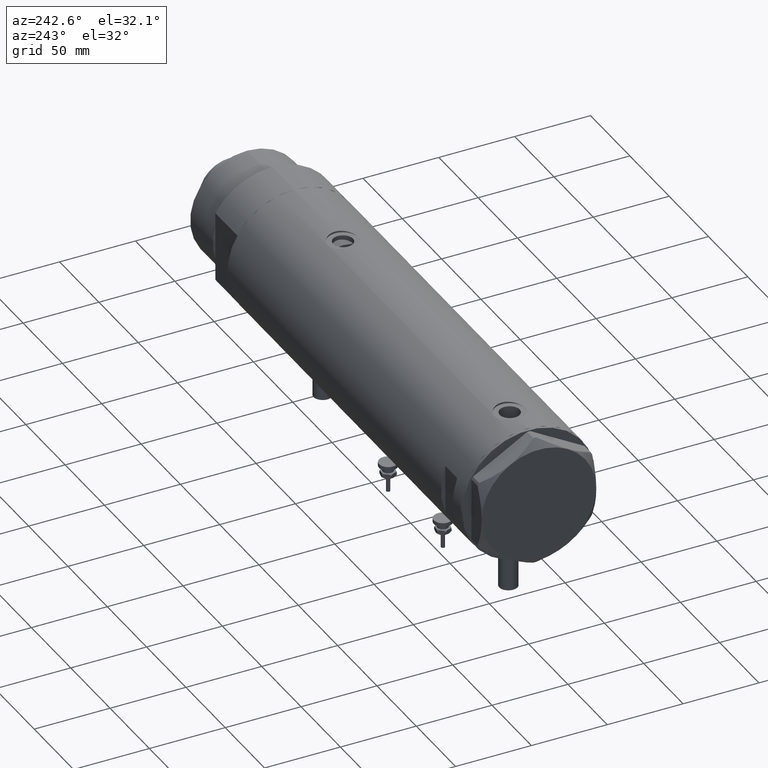
[diagram: clean part render]
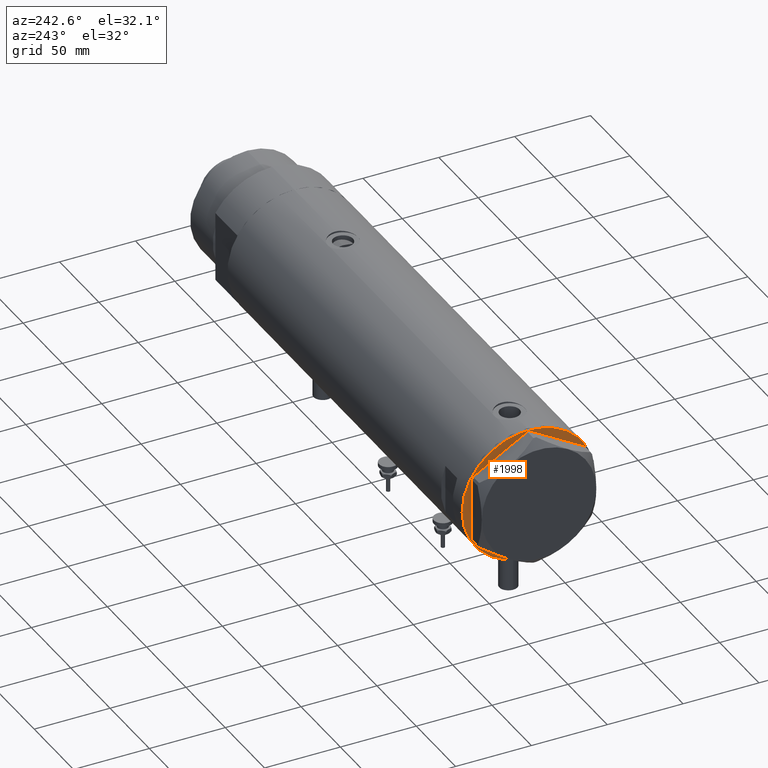
[diagram: same view with one face highlighted and labeled with its STEP entity id]
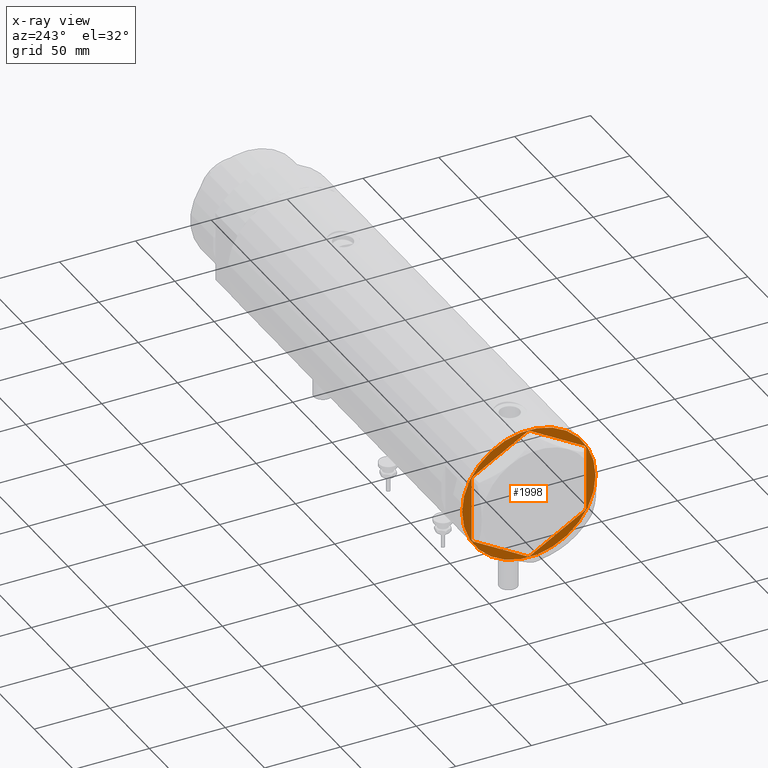
[diagram: x-ray of the same camera — body ghosted, the highlighted face saturated]
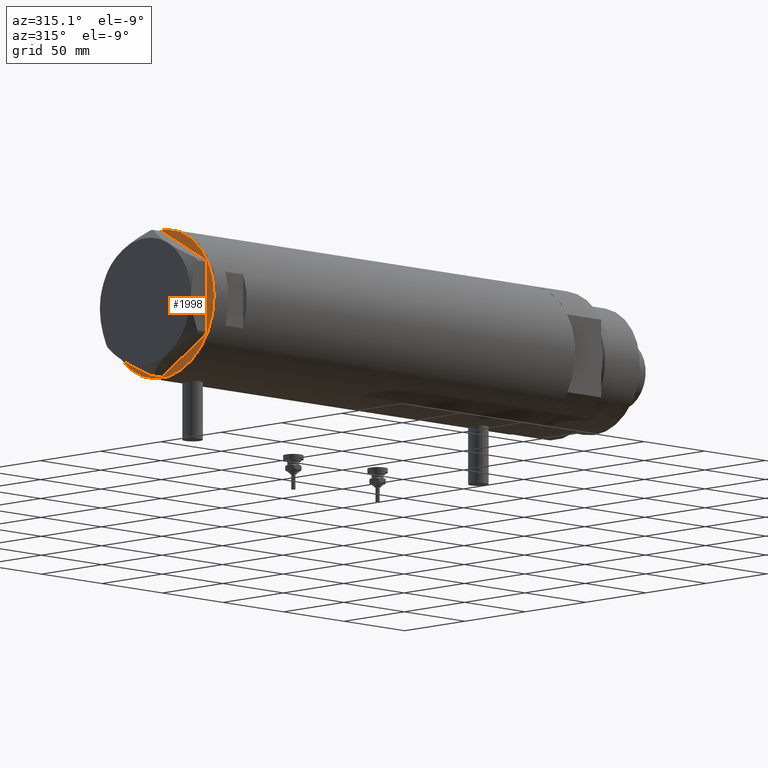
[diagram: same view with one face highlighted and labeled with its STEP entity id]
A machine part, auxiliary view. The second image highlights one B-rep face of the part: STEP entity #1998.
The next image is the same camera in x-ray: the body ghosted, the highlighted face saturated — about 0% of this face is hidden behind the body in this view.
A second angle (auxiliary view) of the same face is appended — the face is thin or edge-on in the first view.
In plain terms, the highlighted planar face has unit normal (1, 0, -0).
Its self-contained STEP definition (entity closure, byte-faithful):
#5 = DIRECTION ( 'NONE',  ( -1.000000000000000000, -0.000000000000000000, -0.000000000000000000 ) ) ;
#103 = VERTEX_POINT ( 'NONE', #1118 ) ;
#114 = DIRECTION ( 'NONE',  ( 0.4999999999999993894, -0.8660254037844390407, -0.000000000000000000 ) ) ;
#186 = LINE ( 'NONE', #2943, #4299 ) ;
#191 = ORIENTED_EDGE ( 'NONE', *, *, #2574, .F. ) ;
#266 = VECTOR ( 'NONE', #2166, 1000.000000000000000 ) ;
#284 = CARTESIAN_POINT ( 'NONE',  ( 0.000000000000000000, 43.02994532381674020, 0.000000000000000000 ) ) ;
#329 = VECTOR ( 'NONE', #4174, 1000.000000000000227 ) ;
#421 = ORIENTED_EDGE ( 'NONE', *, *, #4400, .F. ) ;
#569 = EDGE_CURVE ( 'NONE', #3100, #4503, #2707, .T. ) ;
#576 = DIRECTION ( 'NONE',  ( 0.000000000000000000, 0.000000000000000000, -1.000000000000000000 ) ) ;
#600 = CARTESIAN_POINT ( 'NONE',  ( 36.78005154776143115, -22.35497266190837706, 0.000000000000000000 ) ) ;
#615 = CARTESIAN_POINT ( 'NONE',  ( -0.9699484522385920515, -43.02994532381674020, 0.000000000000000000 ) ) ;
#649 = CARTESIAN_POINT ( 'NONE',  ( -37.75000000000000711, 21.79497266190837124, 0.000000000000000000 ) ) ;
#678 = DIRECTION ( 'NONE',  ( 1.000000000000000000, -0.000000000000000000, -0.000000000000000000 ) ) ;
#719 = VERTEX_POINT ( 'NONE', #1628 ) ;
#819 = CARTESIAN_POINT ( 'NONE',  ( 0.000000000000000000, 0.000000000000000000, 0.000000000000000000 ) ) ;
#820 = DIRECTION ( 'NONE',  ( 0.000000000000000000, 0.000000000000000000, -1.000000000000000000 ) ) ;
#922 = VERTEX_POINT ( 'NONE', #5231 ) ;
#932 = VERTEX_POINT ( 'NONE', #1829 ) ;
#963 = EDGE_CURVE ( 'NONE', #1521, #2354, #2850, .T. ) ;
#1118 = CARTESIAN_POINT ( 'NONE',  ( 0.9699484522385850571, 43.02994532381674020, 0.000000000000000000 ) ) ;
#1192 = ORIENTED_EDGE ( 'NONE', *, *, #3911, .F. ) ;
#1271 = ORIENTED_EDGE ( 'NONE', *, *, #4678, .F. ) ;
#1272 = EDGE_CURVE ( 'NONE', #3100, #2354, #1703, .T. ) ;
#1322 = FACE_BOUND ( 'NONE', #3854, .T. ) ;
#1365 = VECTOR ( 'NONE', #114, 999.9999999999998863 ) ;
#1495 = CIRCLE ( 'NONE', #4203, 44.00000000000000000 ) ;
#1521 = VERTEX_POINT ( 'NONE', #4070 ) ;
#1529 = EDGE_CURVE ( 'NONE', #719, #3189, #5487, .T. ) ;
#1589 = VECTOR ( 'NONE', #5080, 999.9999999999998863 ) ;
#1611 = ORIENTED_EDGE ( 'NONE', *, *, #1529, .F. ) ;
#1628 = CARTESIAN_POINT ( 'NONE',  ( 44.00000000000000000, 0.000000000000000000, 0.000000000000000000 ) ) ;
#1635 = EDGE_CURVE ( 'NONE', #922, #4503, #5173, .T. ) ;
#1698 = LINE ( 'NONE', #4512, #4019 ) ;
#1701 = CARTESIAN_POINT ( 'NONE',  ( 0.000000000000000000, -43.02994532381674020, 0.000000000000000000 ) ) ;
#1703 = LINE ( 'NONE', #5824, #3674 ) ;
#1781 = EDGE_CURVE ( 'NONE', #4797, #2028, #3799, .T. ) ;
#1829 = CARTESIAN_POINT ( 'NONE',  ( -37.75000000000000711, 20.67497266190837024, 0.000000000000000000 ) ) ;
#1878 = ORIENTED_EDGE ( 'NONE', *, *, #4728, .T. ) ;
#1975 = CARTESIAN_POINT ( 'NONE',  ( -36.78005154776143826, 22.35497266190836996, 0.000000000000000000 ) ) ;
#1998 = ADVANCED_FACE ( 'NONE', ( #1322, #3595 ), #3176, .F. ) ;
#2028 = VERTEX_POINT ( 'NONE', #3151 ) ;
#2166 = DIRECTION ( 'NONE',  ( -4.775569585389645902E-16, 1.000000000000000000, 0.000000000000000000 ) ) ;
#2279 = CARTESIAN_POINT ( 'NONE',  ( -37.26502577388070847, -21.51497266190838076, 0.000000000000000000 ) ) ;
#2354 = VERTEX_POINT ( 'NONE', #600 ) ;
#2519 = VECTOR ( 'NONE', #5, 1000.000000000000000 ) ;
#2520 = LINE ( 'NONE', #284, #2862 ) ;
#2534 = LINE ( 'NONE', #649, #4196 ) ;
#2574 = EDGE_CURVE ( 'NONE', #4797, #103, #3250, .T. ) ;
#2625 = CARTESIAN_POINT ( 'NONE',  ( 37.75000000000002132, -21.79497266190837124, 0.000000000000000000 ) ) ;
#2628 = CARTESIAN_POINT ( 'NONE',  ( -37.74999999999999289, -20.67497266190837379, 0.000000000000000000 ) ) ;
#2690 = DIRECTION ( 'NONE',  ( -1.000000000000000000, 0.000000000000000000, 0.000000000000000000 ) ) ;
#2691 = CARTESIAN_POINT ( 'NONE',  ( 0.000000000000000000, 0.000000000000000000, 0.000000000000000000 ) ) ;
#2707 = LINE ( 'NONE', #1701, #2519 ) ;
#2756 = ORIENTED_EDGE ( 'NONE', *, *, #569, .T. ) ;
#2775 = CARTESIAN_POINT ( 'NONE',  ( 36.78005154776142405, 22.35497266190837706, 0.000000000000000000 ) ) ;
#2783 = ORIENTED_EDGE ( 'NONE', *, *, #1272, .F. ) ;
#2850 = LINE ( 'NONE', #4659, #329 ) ;
#2862 = VECTOR ( 'NONE', #678, 1000.000000000000000 ) ;
#2922 = CARTESIAN_POINT ( 'NONE',  ( 0.000000000000000000, 0.000000000000000000, 0.000000000000000000 ) ) ;
#2943 = CARTESIAN_POINT ( 'NONE',  ( 0.000000000000000000, 43.58994532381674247, 0.000000000000000000 ) ) ;
#3034 = VECTOR ( 'NONE', #5101, 1000.000000000000227 ) ;
#3086 = DIRECTION ( 'NONE',  ( 0.8660254037844388186, 0.4999999999999997224, 0.000000000000000000 ) ) ;
#3100 = VERTEX_POINT ( 'NONE', #4584 ) ;
#3150 = DIRECTION ( 'NONE',  ( 0.000000000000000000, 0.000000000000000000, -1.000000000000000000 ) ) ;
#3151 = CARTESIAN_POINT ( 'NONE',  ( 37.75000000000000000, 20.67497266190835958, 0.000000000000000000 ) ) ;
#3176 = PLANE ( 'NONE',  #3985 ) ;
#3189 = VERTEX_POINT ( 'NONE', #4815 ) ;
#3250 = LINE ( 'NONE', #4175, #3034 ) ;
#3415 = CARTESIAN_POINT ( 'NONE',  ( 37.26502577388072979, 21.51497266190834523, 0.000000000000000000 ) ) ;
#3507 = LINE ( 'NONE', #2625, #266 ) ;
#3595 = FACE_OUTER_BOUND ( 'NONE', #4158, .T. ) ;
#3674 = VECTOR ( 'NONE', #3086, 1000.000000000000114 ) ;
#3794 = DIRECTION ( 'NONE',  ( -1.000000000000000000, 0.000000000000000000, 0.000000000000000000 ) ) ;
#3799 = LINE ( 'NONE', #3415, #1365 ) ;
#3854 = EDGE_LOOP ( 'NONE', ( #191, #5614, #1271, #5727, #2783, #2756, #5447, #1878, #421, #5650, #1192, #4114 ) ) ;
#3911 = EDGE_CURVE ( 'NONE', #5993, #4995, #186, .T. ) ;
#3985 = AXIS2_PLACEMENT_3D ( 'NONE', #2691, #820, #4076 ) ;
#4019 = VECTOR ( 'NONE', #4419, 1000.000000000000114 ) ;
#4070 = CARTESIAN_POINT ( 'NONE',  ( 37.75000000000002132, -20.67497266190835958, 0.000000000000000000 ) ) ;
#4076 = DIRECTION ( 'NONE',  ( -1.000000000000000000, 0.000000000000000000, -0.000000000000000000 ) ) ;
#4114 = ORIENTED_EDGE ( 'NONE', *, *, #5839, .T. ) ;
#4158 = EDGE_LOOP ( 'NONE', ( #1611, #5506 ) ) ;
#4159 = LINE ( 'NONE', #2279, #1589 ) ;
#4174 = DIRECTION ( 'NONE',  ( -0.4999999999999981681, -0.8660254037844395958, -0.000000000000000000 ) ) ;
#4175 = CARTESIAN_POINT ( 'NONE',  ( 37.75000000000000000, 21.79497266190837124, 0.000000000000000000 ) ) ;
#4196 = VECTOR ( 'NONE', #5224, 1000.000000000000000 ) ;
#4203 = AXIS2_PLACEMENT_3D ( 'NONE', #819, #3150, #2690 ) ;
#4254 = DIRECTION ( 'NONE',  ( 0.8660254037844385966, -0.4999999999999998890, 0.000000000000000000 ) ) ;
#4299 = VECTOR ( 'NONE', #4372, 1000.000000000000000 ) ;
#4372 = DIRECTION ( 'NONE',  ( -0.8660254037844387076, -0.4999999999999998890, 0.000000000000000000 ) ) ;
#4400 = EDGE_CURVE ( 'NONE', #932, #5042, #2534, .T. ) ;
#4419 = DIRECTION ( 'NONE',  ( 0.4999999999999978351, 0.8660254037844398178, -0.000000000000000000 ) ) ;
#4484 = AXIS2_PLACEMENT_3D ( 'NONE', #2922, #576, #3794 ) ;
#4503 = VERTEX_POINT ( 'NONE', #615 ) ;
#4512 = CARTESIAN_POINT ( 'NONE',  ( -37.26502577388077242, 21.51497266190828483, 0.000000000000000000 ) ) ;
#4584 = CARTESIAN_POINT ( 'NONE',  ( 0.9699484522385760643, -43.02994532381674020, 0.000000000000000000 ) ) ;
#4632 = EDGE_CURVE ( 'NONE', #3189, #719, #1495, .T. ) ;
#4659 = CARTESIAN_POINT ( 'NONE',  ( 37.26502577388077242, -21.51497266190830260, 0.000000000000000000 ) ) ;
#4678 = EDGE_CURVE ( 'NONE', #1521, #2028, #3507, .T. ) ;
#4728 = EDGE_CURVE ( 'NONE', #922, #5042, #4159, .T. ) ;
#4756 = CARTESIAN_POINT ( 'NONE',  ( -0.9699484522385801721, 43.02994532381674020, 0.000000000000000000 ) ) ;
#4797 = VERTEX_POINT ( 'NONE', #2775 ) ;
#4815 = CARTESIAN_POINT ( 'NONE',  ( -44.00000000000000000, 5.388445916248353619E-15, 0.000000000000000000 ) ) ;
#4995 = VERTEX_POINT ( 'NONE', #1975 ) ;
#5042 = VERTEX_POINT ( 'NONE', #2628 ) ;
#5080 = DIRECTION ( 'NONE',  ( -0.5000000000000002220, 0.8660254037844385966, -0.000000000000000000 ) ) ;
#5101 = DIRECTION ( 'NONE',  ( -0.8660254037844385966, 0.5000000000000000000, 0.000000000000000000 ) ) ;
#5173 = LINE ( 'NONE', #5642, #5963 ) ;
#5224 = DIRECTION ( 'NONE',  ( 3.183713056926429451E-16, -1.000000000000000000, 0.000000000000000000 ) ) ;
#5231 = CARTESIAN_POINT ( 'NONE',  ( -36.78005154776141694, -22.35497266190838772, 0.000000000000000000 ) ) ;
#5447 = ORIENTED_EDGE ( 'NONE', *, *, #1635, .F. ) ;
#5487 = CIRCLE ( 'NONE', #4484, 44.00000000000000000 ) ;
#5506 = ORIENTED_EDGE ( 'NONE', *, *, #4632, .F. ) ;
#5614 = ORIENTED_EDGE ( 'NONE', *, *, #1781, .T. ) ;
#5642 = CARTESIAN_POINT ( 'NONE',  ( -37.74999999999999289, -21.79497266190838189, 0.000000000000000000 ) ) ;
#5650 = ORIENTED_EDGE ( 'NONE', *, *, #5749, .T. ) ;
#5727 = ORIENTED_EDGE ( 'NONE', *, *, #963, .T. ) ;
#5749 = EDGE_CURVE ( 'NONE', #932, #4995, #1698, .T. ) ;
#5824 = CARTESIAN_POINT ( 'NONE',  ( -4.107234936485837051E-15, -43.58994532381674247, 0.000000000000000000 ) ) ;
#5839 = EDGE_CURVE ( 'NONE', #5993, #103, #2520, .T. ) ;
#5963 = VECTOR ( 'NONE', #4254, 1000.000000000000227 ) ;
#5993 = VERTEX_POINT ( 'NONE', #4756 ) ;